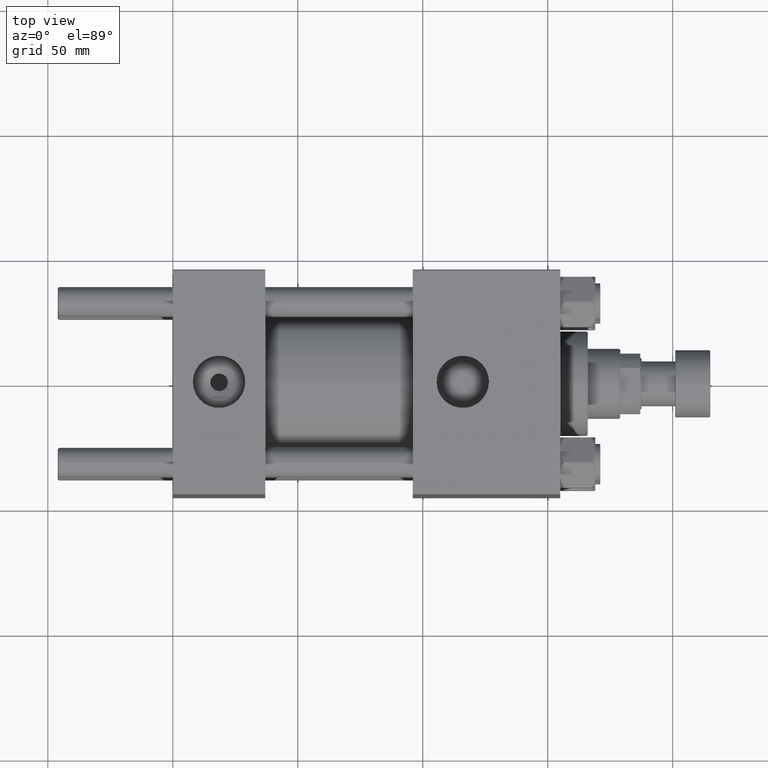
[diagram: clean part render]
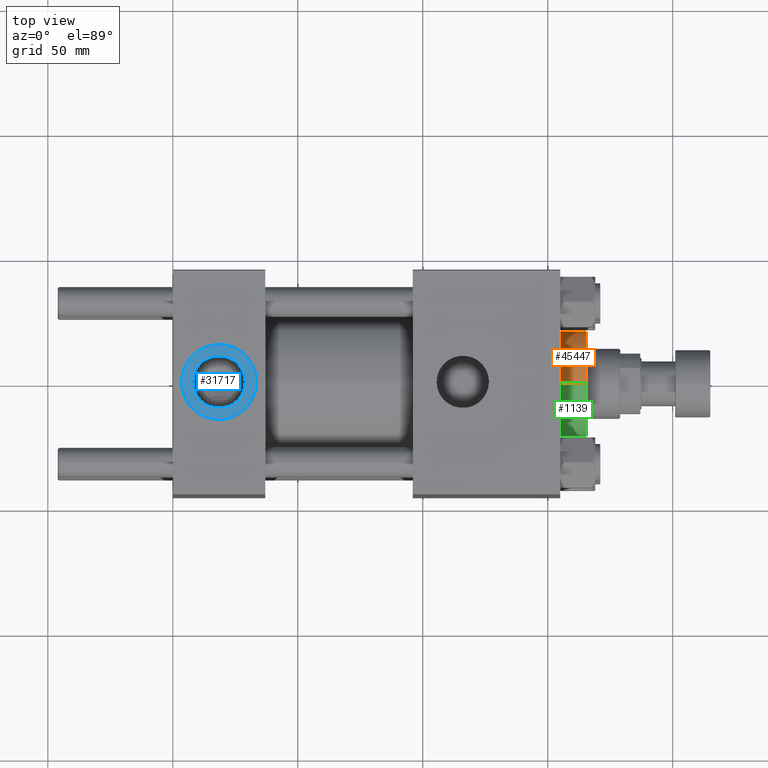
[diagram: same view with three faces highlighted in distinct colors, each labeled with its STEP entity id]
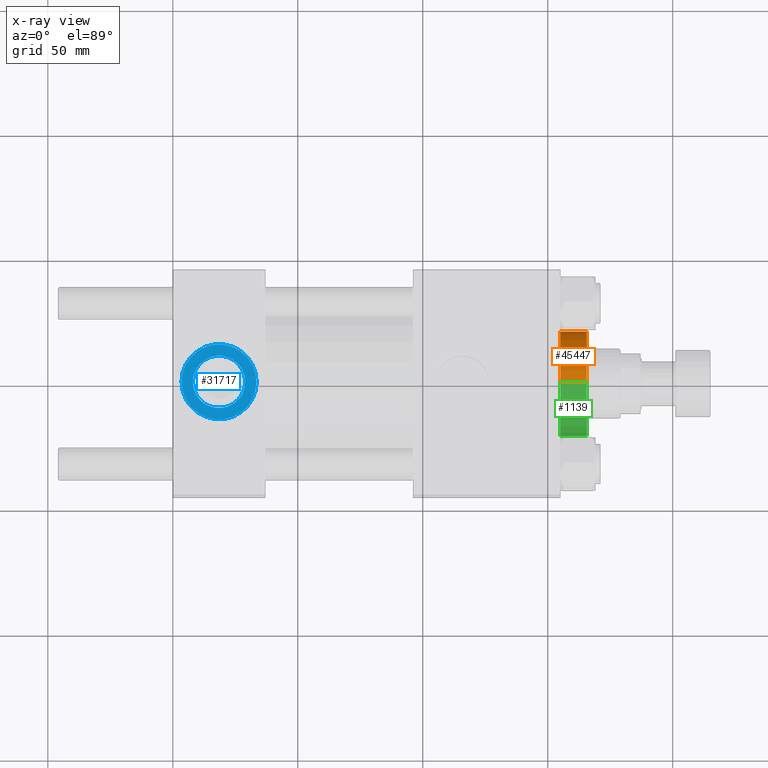
[diagram: x-ray of the same camera — body ghosted, the three highlighted faces saturated]
A machine part, top view with three faces highlighted in distinct colors.
The next image is the same camera in x-ray (body ghosted, the three faces saturated) — at least one of them is partly hidden behind the body in this view.
Their STEP definitions:

[orange] entity #45447 — the highlighted cylindrical surface (partial cylindrical patch) has radius 21 mm, axis along (-1, -0, 0).
#1415 = LINE ( 'NONE', #5384, #34359 ) ;
#1980 = DIRECTION ( 'NONE',  ( 1.000000000000000000, 0.000000000000000000, 0.000000000000000000 ) ) ;
#2741 = EDGE_CURVE ( 'NONE', #37475, #47754, #44189, .T. ) ;
#3728 = DIRECTION ( 'NONE',  ( -0.000000000000000000, -0.000000000000000000, -1.000000000000000000 ) ) ;
#4656 = CIRCLE ( 'NONE', #30025, 21.00000000000000000 ) ;
#5384 = CARTESIAN_POINT ( 'NONE',  ( 21.00000000000000000, 2.571758278209441661E-15, 39.69999999999999574 ) ) ;
#9369 = DIRECTION ( 'NONE',  ( -0.000000000000000000, -0.000000000000000000, -1.000000000000000000 ) ) ;
#10241 = ORIENTED_EDGE ( 'NONE', *, *, #16200, .T. ) ;
#11607 = AXIS2_PLACEMENT_3D ( 'NONE', #50188, #17664, #34072 ) ;
#13459 = EDGE_CURVE ( 'NONE', #37475, #33752, #4656, .T. ) ;
#16200 = EDGE_CURVE ( 'NONE', #33752, #46672, #1415, .T. ) ;
#16434 = CARTESIAN_POINT ( 'NONE',  ( -21.00000000000000000, 0.000000000000000000, 39.69999999999999574 ) ) ;
#17664 = DIRECTION ( 'NONE',  ( -0.000000000000000000, -0.000000000000000000, -1.000000000000000000 ) ) ;
#19228 = CIRCLE ( 'NONE', #23459, 21.00000000000000000 ) ;
#20063 = EDGE_CURVE ( 'NONE', #46672, #47754, #19228, .T. ) ;
#21620 = EDGE_LOOP ( 'NONE', ( #30723, #10241, #24108, #34474 ) ) ;
#23459 = AXIS2_PLACEMENT_3D ( 'NONE', #38212, #50904, #1980 ) ;
#24108 = ORIENTED_EDGE ( 'NONE', *, *, #20063, .T. ) ;
#25520 = VECTOR ( 'NONE', #3728, 1000.000000000000000 ) ;
#25600 = CYLINDRICAL_SURFACE ( 'NONE', #11607, 21.00000000000000000 ) ;
#27797 = CARTESIAN_POINT ( 'NONE',  ( 21.00000000000000000, 2.571758278209441661E-15, 28.69999999999999929 ) ) ;
#28143 = DIRECTION ( 'NONE',  ( 0.000000000000000000, 0.000000000000000000, -1.000000000000000000 ) ) ;
#30025 = AXIS2_PLACEMENT_3D ( 'NONE', #37122, #28143, #44268 ) ;
#30723 = ORIENTED_EDGE ( 'NONE', *, *, #13459, .T. ) ;
#33752 = VERTEX_POINT ( 'NONE', #41175 ) ;
#34072 = DIRECTION ( 'NONE',  ( -1.000000000000000000, 0.000000000000000000, 0.000000000000000000 ) ) ;
#34359 = VECTOR ( 'NONE', #9369, 1000.000000000000000 ) ;
#34474 = ORIENTED_EDGE ( 'NONE', *, *, #2741, .F. ) ;
#37122 = CARTESIAN_POINT ( 'NONE',  ( 0.000000000000000000, 0.000000000000000000, 39.19999999999999574 ) ) ;
#37475 = VERTEX_POINT ( 'NONE', #43972 ) ;
#38212 = CARTESIAN_POINT ( 'NONE',  ( 0.000000000000000000, 0.000000000000000000, 28.69999999999999929 ) ) ;
#39490 = CARTESIAN_POINT ( 'NONE',  ( -21.00000000000000000, 0.000000000000000000, 28.69999999999999929 ) ) ;
#41175 = CARTESIAN_POINT ( 'NONE',  ( 21.00000000000000000, 2.571758278209441661E-15, 39.19999999999999574 ) ) ;
#41725 = FACE_OUTER_BOUND ( 'NONE', #21620, .T. ) ;
#43972 = CARTESIAN_POINT ( 'NONE',  ( -21.00000000000000000, 0.000000000000000000, 39.19999999999999574 ) ) ;
#44189 = LINE ( 'NONE', #16434, #25520 ) ;
#44268 = DIRECTION ( 'NONE',  ( 1.000000000000000000, 0.000000000000000000, 0.000000000000000000 ) ) ;
#45447 = ADVANCED_FACE ( 'NONE', ( #41725 ), #25600, .T. ) ;
#46672 = VERTEX_POINT ( 'NONE', #27797 ) ;
#47754 = VERTEX_POINT ( 'NONE', #39490 ) ;
#50188 = CARTESIAN_POINT ( 'NONE',  ( 0.000000000000000000, 0.000000000000000000, 39.69999999999999574 ) ) ;
#50904 = DIRECTION ( 'NONE',  ( 0.000000000000000000, 0.000000000000000000, 1.000000000000000000 ) ) ;

[blue] entity #31717 — the highlighted planar face has unit normal (0, 0, 1).
#246 = CIRCLE ( 'NONE', #43318, 15.00000000000000355 ) ;
#2236 = EDGE_LOOP ( 'NONE', ( #5895, #20863 ) ) ;
#2241 = CARTESIAN_POINT ( 'NONE',  ( 33.50000000000000000, -8.673617379884038628E-15, 44.80000000000000426 ) ) ;
#3368 = PLANE ( 'NONE',  #51822 ) ;
#5308 = VERTEX_POINT ( 'NONE', #7696 ) ;
#5323 = EDGE_CURVE ( 'NONE', #25299, #10710, #246, .T. ) ;
#5895 = ORIENTED_EDGE ( 'NONE', *, *, #37982, .T. ) ;
#7696 = CARTESIAN_POINT ( 'NONE',  ( 8.019999999999999574, -7.390187534377611561E-15, 44.80000000000000426 ) ) ;
#8765 = VERTEX_POINT ( 'NONE', #51458 ) ;
#10509 = CARTESIAN_POINT ( 'NONE',  ( 18.50000000000000000, -8.673617379884038628E-15, 44.80000000000000426 ) ) ;
#10710 = VERTEX_POINT ( 'NONE', #2241 ) ;
#12379 = DIRECTION ( 'NONE',  ( 1.000000000000000000, 0.000000000000000000, 0.000000000000000000 ) ) ;
#15580 = AXIS2_PLACEMENT_3D ( 'NONE', #20563, #21594, #12379 ) ;
#17652 = CIRCLE ( 'NONE', #30242, 10.48000000000000043 ) ;
#17693 = DIRECTION ( 'NONE',  ( 1.000000000000000000, 0.000000000000000000, 0.000000000000000000 ) ) ;
#19985 = CIRCLE ( 'NONE', #47847, 10.48000000000000043 ) ;
#20113 = ORIENTED_EDGE ( 'NONE', *, *, #23186, .F. ) ;
#20563 = CARTESIAN_POINT ( 'NONE',  ( 18.50000000000000000, -8.673617379884038628E-15, 44.80000000000000426 ) ) ;
#20863 = ORIENTED_EDGE ( 'NONE', *, *, #5323, .T. ) ;
#21594 = DIRECTION ( 'NONE',  ( 0.000000000000000000, 0.000000000000000000, 1.000000000000000000 ) ) ;
#22592 = EDGE_LOOP ( 'NONE', ( #35485, #20113 ) ) ;
#23186 = EDGE_CURVE ( 'NONE', #5308, #8765, #17652, .T. ) ;
#23736 = DIRECTION ( 'NONE',  ( 0.000000000000000000, 0.000000000000000000, 1.000000000000000000 ) ) ;
#24842 = DIRECTION ( 'NONE',  ( 0.000000000000000000, 0.000000000000000000, 1.000000000000000000 ) ) ;
#25299 = VERTEX_POINT ( 'NONE', #52347 ) ;
#25708 = CIRCLE ( 'NONE', #15580, 15.00000000000000355 ) ;
#27279 = DIRECTION ( 'NONE',  ( 1.000000000000000000, 0.000000000000000000, 0.000000000000000000 ) ) ;
#29616 = CARTESIAN_POINT ( 'NONE',  ( 18.50000000000000000, -8.673617379884038628E-15, 44.80000000000000426 ) ) ;
#30242 = AXIS2_PLACEMENT_3D ( 'NONE', #29616, #24842, #17693 ) ;
#31717 = ADVANCED_FACE ( 'NONE', ( #44356, #36167 ), #3368, .T. ) ;
#35485 = ORIENTED_EDGE ( 'NONE', *, *, #43638, .F. ) ;
#35989 = CARTESIAN_POINT ( 'NONE',  ( 18.50000000000000000, -8.673617379884038628E-15, 44.80000000000000426 ) ) ;
#36167 = FACE_OUTER_BOUND ( 'NONE', #2236, .T. ) ;
#37982 = EDGE_CURVE ( 'NONE', #10710, #25299, #25708, .T. ) ;
#43318 = AXIS2_PLACEMENT_3D ( 'NONE', #35989, #51084, #27279 ) ;
#43638 = EDGE_CURVE ( 'NONE', #8765, #5308, #19985, .T. ) ;
#44356 = FACE_BOUND ( 'NONE', #22592, .T. ) ;
#47489 = DIRECTION ( 'NONE',  ( 1.000000000000000000, 0.000000000000000000, 0.000000000000000000 ) ) ;
#47755 = DIRECTION ( 'NONE',  ( 0.000000000000000000, 0.000000000000000000, 1.000000000000000000 ) ) ;
#47797 = DIRECTION ( 'NONE',  ( 1.000000000000000000, 0.000000000000000000, -0.000000000000000000 ) ) ;
#47847 = AXIS2_PLACEMENT_3D ( 'NONE', #10509, #47755, #47489 ) ;
#48059 = CARTESIAN_POINT ( 'NONE',  ( 18.50000000000000000, -8.673617379884038628E-15, 44.80000000000000426 ) ) ;
#51084 = DIRECTION ( 'NONE',  ( 0.000000000000000000, 0.000000000000000000, 1.000000000000000000 ) ) ;
#51458 = CARTESIAN_POINT ( 'NONE',  ( 28.98000000000000043, -8.673617379884038628E-15, 44.80000000000000426 ) ) ;
#51822 = AXIS2_PLACEMENT_3D ( 'NONE', #48059, #23736, #47797 ) ;
#52347 = CARTESIAN_POINT ( 'NONE',  ( 3.499999999999997780, -6.836647181163008250E-15, 44.80000000000000426 ) ) ;

[green] entity #1139 — the highlighted cylindrical surface (partial cylindrical patch) has radius 21 mm, axis along (-1, -0, 0).
#389 = DIRECTION ( 'NONE',  ( 0.000000000000000000, 0.000000000000000000, -1.000000000000000000 ) ) ;
#1139 = ADVANCED_FACE ( 'NONE', ( #15530 ), #44080, .T. ) ;
#1415 = LINE ( 'NONE', #5384, #34359 ) ;
#1660 = AXIS2_PLACEMENT_3D ( 'NONE', #48580, #11302, #3608 ) ;
#2382 = DIRECTION ( 'NONE',  ( 1.000000000000000000, 0.000000000000000000, 0.000000000000000000 ) ) ;
#2741 = EDGE_CURVE ( 'NONE', #37475, #47754, #44189, .T. ) ;
#3608 = DIRECTION ( 'NONE',  ( -1.000000000000000000, 0.000000000000000000, 0.000000000000000000 ) ) ;
#3728 = DIRECTION ( 'NONE',  ( -0.000000000000000000, -0.000000000000000000, -1.000000000000000000 ) ) ;
#5384 = CARTESIAN_POINT ( 'NONE',  ( 21.00000000000000000, 2.571758278209441661E-15, 39.69999999999999574 ) ) ;
#6602 = CIRCLE ( 'NONE', #32810, 21.00000000000000000 ) ;
#9369 = DIRECTION ( 'NONE',  ( -0.000000000000000000, -0.000000000000000000, -1.000000000000000000 ) ) ;
#11302 = DIRECTION ( 'NONE',  ( -0.000000000000000000, -0.000000000000000000, -1.000000000000000000 ) ) ;
#11933 = EDGE_LOOP ( 'NONE', ( #45519, #15496, #51150, #34338 ) ) ;
#12341 = CIRCLE ( 'NONE', #28389, 21.00000000000000000 ) ;
#15496 = ORIENTED_EDGE ( 'NONE', *, *, #46510, .T. ) ;
#15530 = FACE_OUTER_BOUND ( 'NONE', #11933, .T. ) ;
#16200 = EDGE_CURVE ( 'NONE', #33752, #46672, #1415, .T. ) ;
#16434 = CARTESIAN_POINT ( 'NONE',  ( -21.00000000000000000, 0.000000000000000000, 39.69999999999999574 ) ) ;
#25512 = DIRECTION ( 'NONE',  ( 1.000000000000000000, 0.000000000000000000, 0.000000000000000000 ) ) ;
#25520 = VECTOR ( 'NONE', #3728, 1000.000000000000000 ) ;
#27797 = CARTESIAN_POINT ( 'NONE',  ( 21.00000000000000000, 2.571758278209441661E-15, 28.69999999999999929 ) ) ;
#28389 = AXIS2_PLACEMENT_3D ( 'NONE', #38090, #46292, #2382 ) ;
#32810 = AXIS2_PLACEMENT_3D ( 'NONE', #33727, #389, #25512 ) ;
#33727 = CARTESIAN_POINT ( 'NONE',  ( 0.000000000000000000, 0.000000000000000000, 39.19999999999999574 ) ) ;
#33752 = VERTEX_POINT ( 'NONE', #41175 ) ;
#34338 = ORIENTED_EDGE ( 'NONE', *, *, #40595, .T. ) ;
#34359 = VECTOR ( 'NONE', #9369, 1000.000000000000000 ) ;
#37475 = VERTEX_POINT ( 'NONE', #43972 ) ;
#38090 = CARTESIAN_POINT ( 'NONE',  ( 0.000000000000000000, 0.000000000000000000, 28.69999999999999929 ) ) ;
#39490 = CARTESIAN_POINT ( 'NONE',  ( -21.00000000000000000, 0.000000000000000000, 28.69999999999999929 ) ) ;
#40595 = EDGE_CURVE ( 'NONE', #47754, #46672, #12341, .T. ) ;
#41175 = CARTESIAN_POINT ( 'NONE',  ( 21.00000000000000000, 2.571758278209441661E-15, 39.19999999999999574 ) ) ;
#43972 = CARTESIAN_POINT ( 'NONE',  ( -21.00000000000000000, 0.000000000000000000, 39.19999999999999574 ) ) ;
#44080 = CYLINDRICAL_SURFACE ( 'NONE', #1660, 21.00000000000000000 ) ;
#44189 = LINE ( 'NONE', #16434, #25520 ) ;
#45519 = ORIENTED_EDGE ( 'NONE', *, *, #16200, .F. ) ;
#46292 = DIRECTION ( 'NONE',  ( 0.000000000000000000, 0.000000000000000000, 1.000000000000000000 ) ) ;
#46510 = EDGE_CURVE ( 'NONE', #33752, #37475, #6602, .T. ) ;
#46672 = VERTEX_POINT ( 'NONE', #27797 ) ;
#47754 = VERTEX_POINT ( 'NONE', #39490 ) ;
#48580 = CARTESIAN_POINT ( 'NONE',  ( 0.000000000000000000, 0.000000000000000000, 39.69999999999999574 ) ) ;
#51150 = ORIENTED_EDGE ( 'NONE', *, *, #2741, .T. ) ;